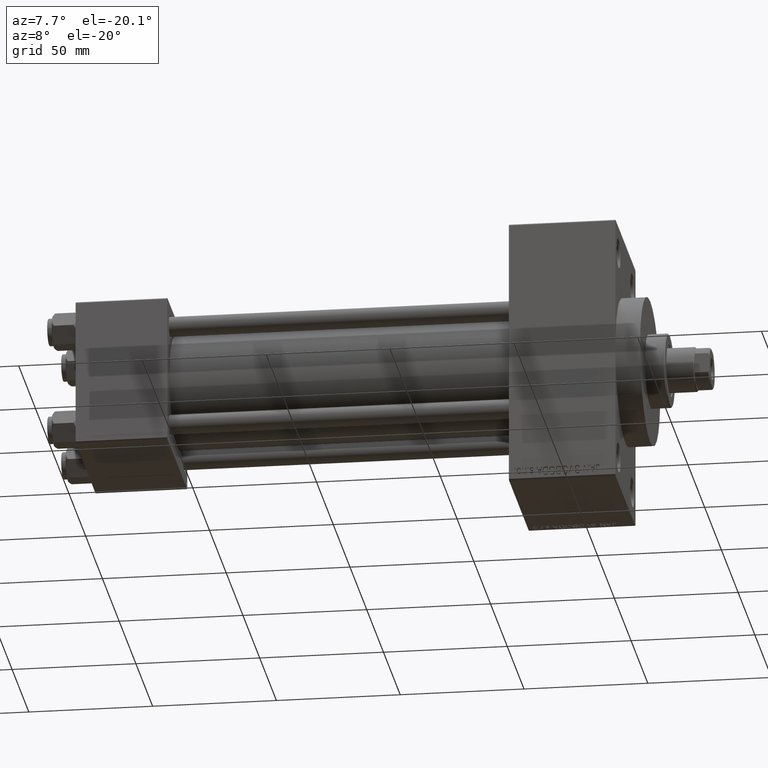
[diagram: clean part render]
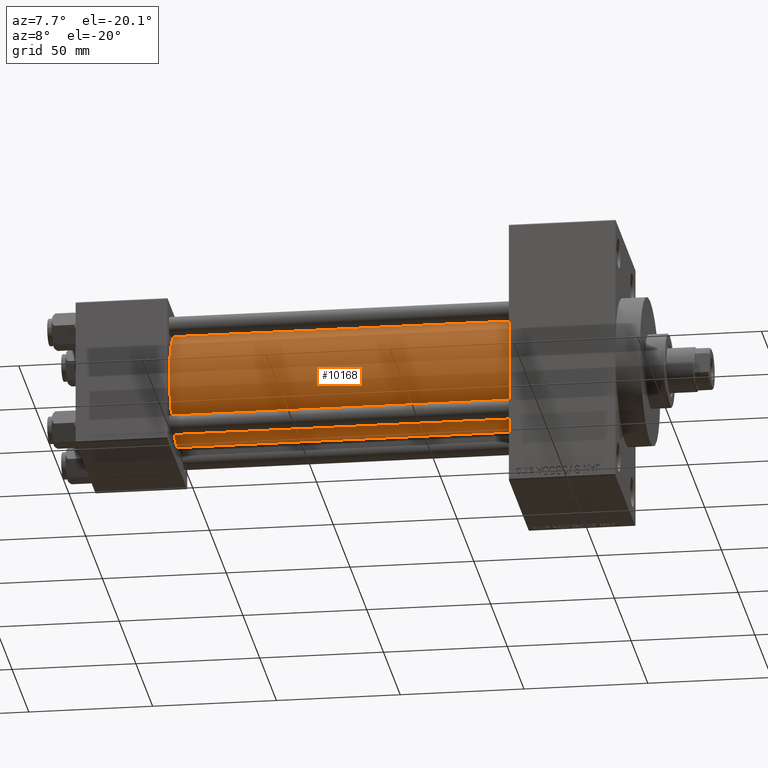
[diagram: same view with one face highlighted and labeled with its STEP entity id]
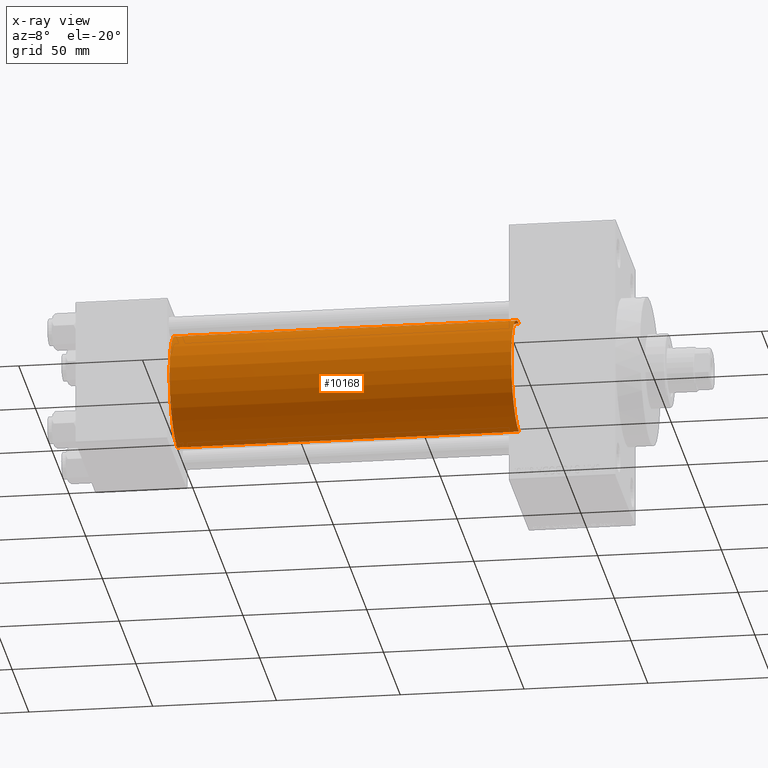
[diagram: x-ray of the same camera — body ghosted, the highlighted face saturated]
A machine part, auxiliary view. The second image highlights one B-rep face of the part: STEP entity #10168.
The next image is the same camera in x-ray: the body ghosted, the highlighted face saturated — about 0% of this face is hidden behind the body in this view.
In plain terms, the highlighted cylindrical surface (partial cylindrical patch) has radius 23 mm, axis along (-1, -0, -0).
Its self-contained STEP definition (entity closure, byte-faithful):
#12 = CARTESIAN_POINT ( 'NONE',  ( 175.0000000000000284, -2.602085213965210642E-15, 0.000000000000000000 ) ) ;
#2971 = ORIENTED_EDGE ( 'NONE', *, *, #32329, .F. ) ;
#3401 = CARTESIAN_POINT ( 'NONE',  ( 175.0000000000000284, 2.146024240737016609E-16, -23.00000000000000000 ) ) ;
#4895 = CARTESIAN_POINT ( 'NONE',  ( 37.00000000000000711, 2.146024240737016609E-16, -23.00000000000000000 ) ) ;
#5849 = CARTESIAN_POINT ( 'NONE',  ( 175.0000000000000284, -2.602085213965210642E-15, 23.00000000000000000 ) ) ;
#6067 = DIRECTION ( 'NONE',  ( 1.000000000000000000, -0.000000000000000000, 0.000000000000000000 ) ) ;
#6311 = CARTESIAN_POINT ( 'NONE',  ( 175.0000000000000284, 2.146024240737016609E-16, -23.00000000000000000 ) ) ;
#7416 = FACE_OUTER_BOUND ( 'NONE', #13752, .T. ) ;
#9424 = CIRCLE ( 'NONE', #14043, 23.00000000000000000 ) ;
#10168 = ADVANCED_FACE ( 'NONE', ( #7416 ), #32517, .T. ) ;
#10760 = CARTESIAN_POINT ( 'NONE',  ( 37.00000000000000711, -2.602085213965210642E-15, 23.00000000000000000 ) ) ;
#12446 = VERTEX_POINT ( 'NONE', #4895 ) ;
#12868 = EDGE_CURVE ( 'NONE', #46821, #16626, #24420, .T. ) ;
#13752 = EDGE_LOOP ( 'NONE', ( #31237, #2971, #36518, #28607 ) ) ;
#13842 = CIRCLE ( 'NONE', #40524, 23.00000000000000000 ) ;
#14043 = AXIS2_PLACEMENT_3D ( 'NONE', #37760, #30128, #19383 ) ;
#16174 = VERTEX_POINT ( 'NONE', #3401 ) ;
#16626 = VERTEX_POINT ( 'NONE', #10760 ) ;
#19355 = VECTOR ( 'NONE', #23534, 1000.000000000000000 ) ;
#19383 = DIRECTION ( 'NONE',  ( 0.000000000000000000, 0.000000000000000000, -1.000000000000000000 ) ) ;
#19711 = CARTESIAN_POINT ( 'NONE',  ( 37.00000000000000711, -2.602085213965210642E-15, 0.000000000000000000 ) ) ;
#21070 = DIRECTION ( 'NONE',  ( -1.000000000000000000, -0.000000000000000000, -0.000000000000000000 ) ) ;
#22340 = EDGE_CURVE ( 'NONE', #16626, #12446, #13842, .T. ) ;
#23534 = DIRECTION ( 'NONE',  ( -1.000000000000000000, -0.000000000000000000, -0.000000000000000000 ) ) ;
#24420 = LINE ( 'NONE', #31824, #35959 ) ;
#24874 = DIRECTION ( 'NONE',  ( -1.000000000000000000, -0.000000000000000000, -0.000000000000000000 ) ) ;
#28607 = ORIENTED_EDGE ( 'NONE', *, *, #22340, .T. ) ;
#29097 = EDGE_CURVE ( 'NONE', #16174, #12446, #39040, .T. ) ;
#30128 = DIRECTION ( 'NONE',  ( 1.000000000000000000, 0.000000000000000000, 0.000000000000000000 ) ) ;
#31237 = ORIENTED_EDGE ( 'NONE', *, *, #29097, .F. ) ;
#31824 = CARTESIAN_POINT ( 'NONE',  ( 175.0000000000000284, -2.602085213965210642E-15, 23.00000000000000000 ) ) ;
#32329 = EDGE_CURVE ( 'NONE', #46821, #16174, #9424, .T. ) ;
#32517 = CYLINDRICAL_SURFACE ( 'NONE', #35139, 23.00000000000000000 ) ;
#35139 = AXIS2_PLACEMENT_3D ( 'NONE', #12, #24874, #39913 ) ;
#35959 = VECTOR ( 'NONE', #21070, 1000.000000000000000 ) ;
#36518 = ORIENTED_EDGE ( 'NONE', *, *, #12868, .T. ) ;
#37760 = CARTESIAN_POINT ( 'NONE',  ( 175.0000000000000284, -2.602085213965210642E-15, 0.000000000000000000 ) ) ;
#39040 = LINE ( 'NONE', #6311, #19355 ) ;
#39913 = DIRECTION ( 'NONE',  ( 0.000000000000000000, 0.000000000000000000, 1.000000000000000000 ) ) ;
#40524 = AXIS2_PLACEMENT_3D ( 'NONE', #19711, #6067, #45004 ) ;
#45004 = DIRECTION ( 'NONE',  ( 0.000000000000000000, 0.000000000000000000, 1.000000000000000000 ) ) ;
#46821 = VERTEX_POINT ( 'NONE', #5849 ) ;